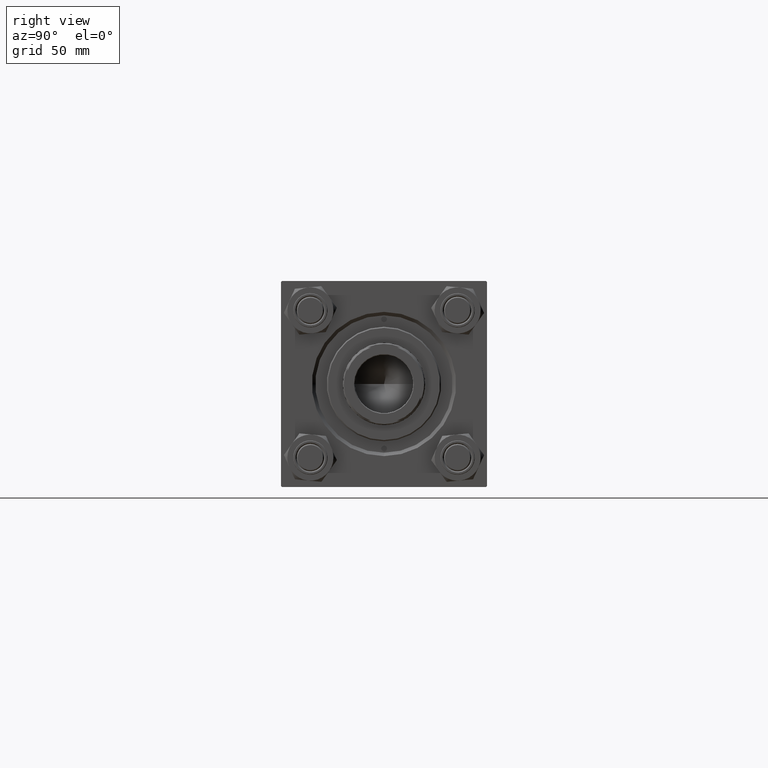
[diagram: clean part render]
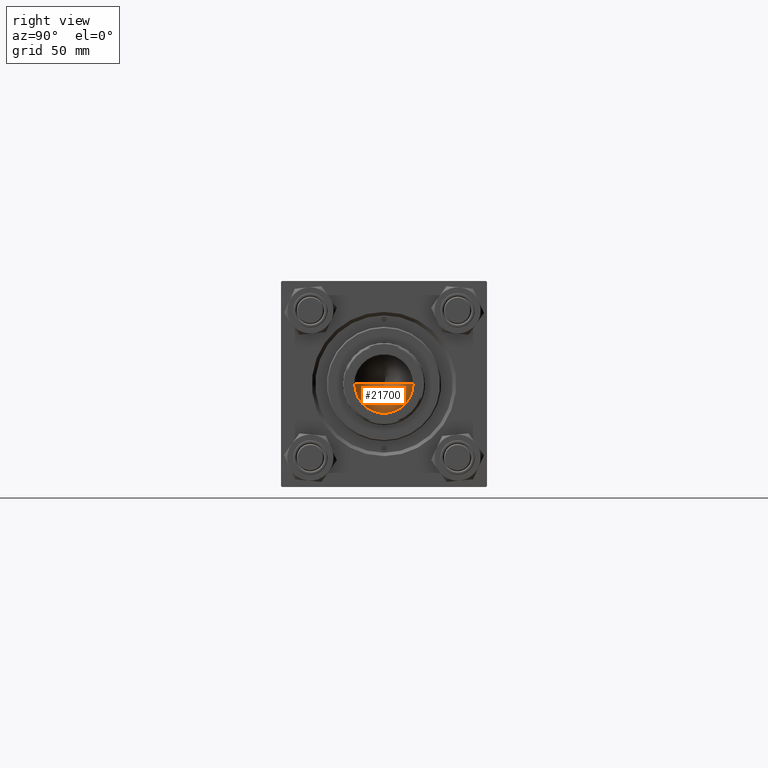
[diagram: same view with one face highlighted and labeled with its STEP entity id]
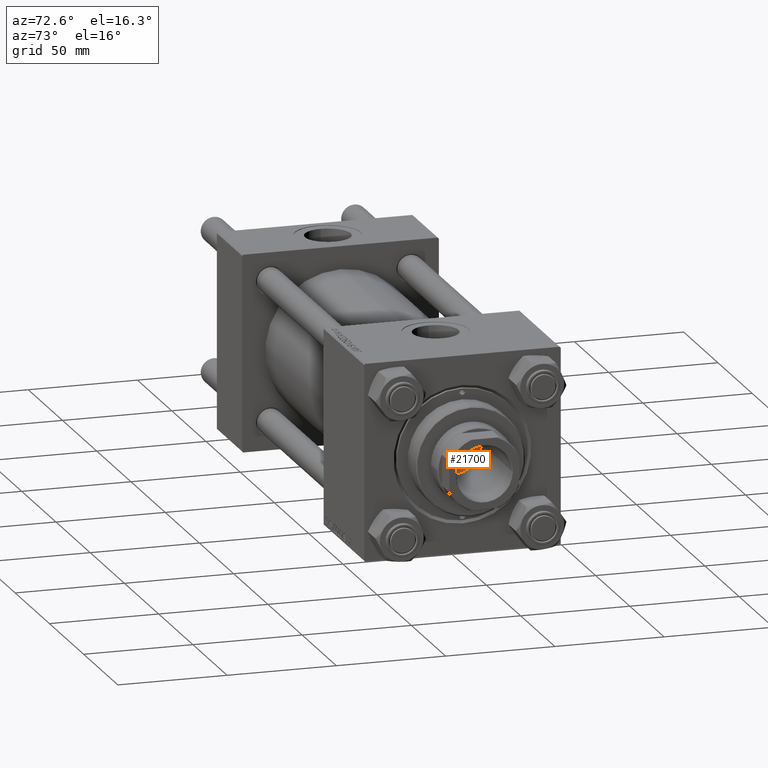
[diagram: same view with one face highlighted and labeled with its STEP entity id]
A machine part, right view. The second image highlights one B-rep face of the part: STEP entity #21700.
A second angle (auxiliary view) of the same face is appended — the face is thin or edge-on in the first view.
In plain terms, the highlighted conical surface has half-angle 59 deg.
Its self-contained STEP definition (entity closure, byte-faithful):
#2156 = DIRECTION ( 'NONE',  ( -0.8571673007021110013, 1.049727191138617093E-16, 0.5150380749100563760 ) ) ;
#2517 = LINE ( 'NONE', #21473, #4206 ) ;
#2870 = CARTESIAN_POINT ( 'NONE',  ( 12.74999999999998934, 0.000000000000000000, 165.0000000000000284 ) ) ;
#4095 = VERTEX_POINT ( 'NONE', #39247 ) ;
#4206 = VECTOR ( 'NONE', #33334, 1000.000000000000000 ) ;
#4396 = CARTESIAN_POINT ( 'NONE',  ( -1.410643066818227497E-14, 0.000000000000000000, 157.3390271073986071 ) ) ;
#5177 = EDGE_LOOP ( 'NONE', ( #14347, #33100, #26539 ) ) ;
#5664 = DIRECTION ( 'NONE',  ( 1.000000000000000000, 0.000000000000000000, 0.000000000000000000 ) ) ;
#7108 = VERTEX_POINT ( 'NONE', #2870 ) ;
#12723 = CARTESIAN_POINT ( 'NONE',  ( 0.000000000000000000, 0.000000000000000000, 165.0000000000000284 ) ) ;
#13815 = AXIS2_PLACEMENT_3D ( 'NONE', #38438, #33655, #49550 ) ;
#14347 = ORIENTED_EDGE ( 'NONE', *, *, #49138, .F. ) ;
#21473 = CARTESIAN_POINT ( 'NONE',  ( 12.74999999999998934, 0.000000000000000000, 165.0000000000000284 ) ) ;
#21700 = ADVANCED_FACE ( 'NONE', ( #47335 ), #36437, .F. ) ;
#22952 = EDGE_CURVE ( 'NONE', #28041, #7108, #2517, .T. ) ;
#24877 = DIRECTION ( 'NONE',  ( -0.000000000000000000, -0.000000000000000000, 1.000000000000000000 ) ) ;
#25077 = EDGE_CURVE ( 'NONE', #7108, #4095, #35610, .T. ) ;
#26539 = ORIENTED_EDGE ( 'NONE', *, *, #25077, .T. ) ;
#28041 = VERTEX_POINT ( 'NONE', #4396 ) ;
#30554 = VECTOR ( 'NONE', #2156, 1000.000000000000000 ) ;
#32719 = CARTESIAN_POINT ( 'NONE',  ( -12.74999999999998934, 1.561424668912873928E-15, 165.0000000000000284 ) ) ;
#33100 = ORIENTED_EDGE ( 'NONE', *, *, #22952, .T. ) ;
#33334 = DIRECTION ( 'NONE',  ( 0.8571673007021110013, 0.000000000000000000, 0.5150380749100563760 ) ) ;
#33655 = DIRECTION ( 'NONE',  ( -0.000000000000000000, -0.000000000000000000, 1.000000000000000000 ) ) ;
#34805 = AXIS2_PLACEMENT_3D ( 'NONE', #12723, #24877, #5664 ) ;
#35610 = CIRCLE ( 'NONE', #13815, 12.74999999999998934 ) ;
#36437 = CONICAL_SURFACE ( 'NONE', #34805, 12.74999999999998934, 1.029744258676651869 ) ;
#38438 = CARTESIAN_POINT ( 'NONE',  ( 0.000000000000000000, 0.000000000000000000, 165.0000000000000284 ) ) ;
#39247 = CARTESIAN_POINT ( 'NONE',  ( -12.74999999999998934, 1.561424668912873928E-15, 165.0000000000000284 ) ) ;
#43574 = LINE ( 'NONE', #32719, #30554 ) ;
#47335 = FACE_OUTER_BOUND ( 'NONE', #5177, .T. ) ;
#49138 = EDGE_CURVE ( 'NONE', #28041, #4095, #43574, .T. ) ;
#49550 = DIRECTION ( 'NONE',  ( 1.000000000000000000, 0.000000000000000000, 0.000000000000000000 ) ) ;